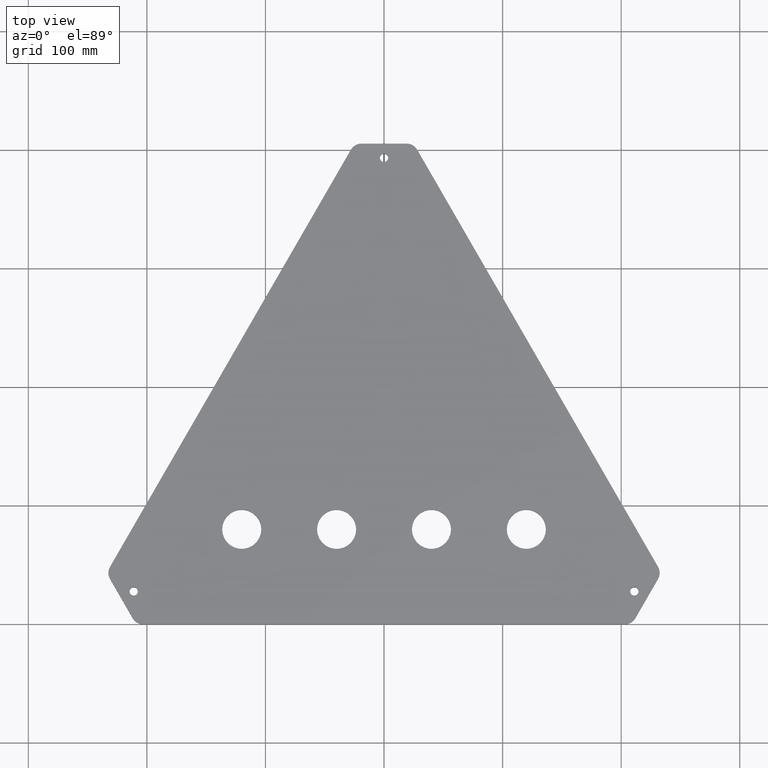
[diagram: clean part render]
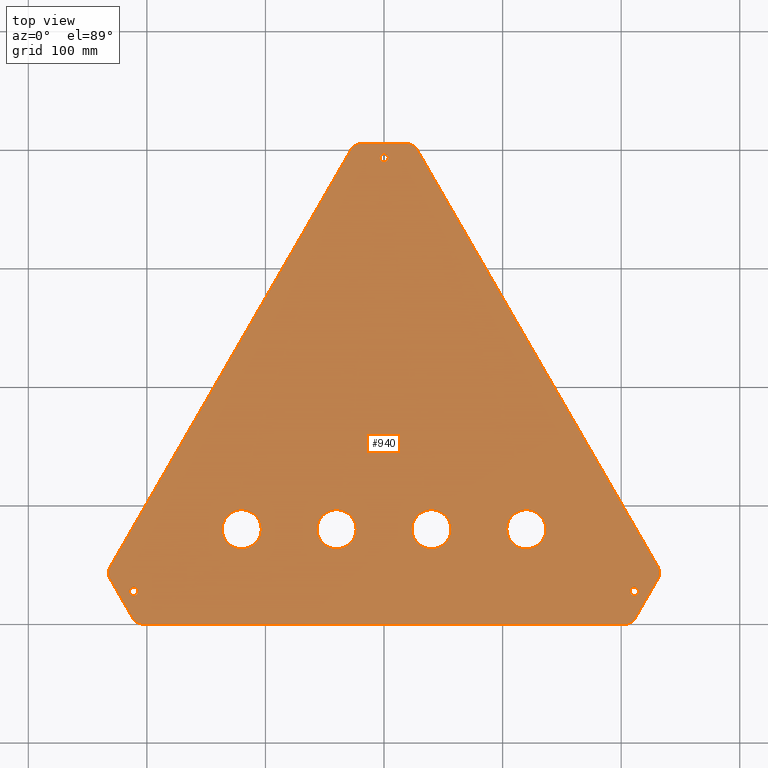
[diagram: same view with one face highlighted and labeled with its STEP entity id]
A machine part, top view. The second image highlights one B-rep face of the part: STEP entity #940.
In plain terms, the highlighted planar face has unit normal (0, -0, 1).
Its self-contained STEP definition (entity closure, byte-faithful):
#1 = DIRECTION ( 'NONE',  ( 0.0000000000000000000, 0.0000000000000000000, 1.000000000000000000 ) ) ;
#6 = CARTESIAN_POINT ( 'NONE',  ( -120.0000000000000000, 80.00000000000000000, 12.00000000000000000 ) ) ;
#7 = DIRECTION ( 'NONE',  ( 0.0000000000000000000, 0.0000000000000000000, 1.000000000000000000 ) ) ;
#8 = LINE ( 'NONE', #241, #11 ) ;
#11 = VECTOR ( 'NONE', #330, 1000.000000000000000 ) ;
#17 = CARTESIAN_POINT ( 'NONE',  ( 222.4529946162090500, 43.30127018922122800, 12.00000000000000000 ) ) ;
#22 = AXIS2_PLACEMENT_3D ( 'NONE', #854, #811, #997 ) ;
#25 = CIRCLE ( 'NONE', #489, 10.00000000000000900 ) ;
#26 = CIRCLE ( 'NONE', #990, 3.499999999999975100 ) ;
#27 = DIRECTION ( 'NONE',  ( 1.000000000000000000, 0.0000000000000000000, 0.0000000000000000000 ) ) ;
#29 = AXIS2_PLACEMENT_3D ( 'NONE', #859, #873, #865 ) ;
#30 = EDGE_CURVE ( 'NONE', #79, #465, #969, .T. ) ;
#34 = CIRCLE ( 'NONE', #333, 3.499999999999975100 ) ;
#48 = CARTESIAN_POINT ( 'NONE',  ( 231.1132486540532200, 38.30127018922088000, 12.00000000000000000 ) ) ;
#53 = DIRECTION ( 'NONE',  ( 0.5000000000000346400, 0.8660254037844186100, 0.0000000000000000000 ) ) ;
#55 = FACE_OUTER_BOUND ( 'NONE', #716, .T. ) ;
#57 = CARTESIAN_POINT ( 'NONE',  ( 27.88675134594812000, 400.2998889711154200, 12.00000000000000000 ) ) ;
#59 = FACE_BOUND ( 'NONE', #887, .T. ) ;
#60 = ORIENTED_EDGE ( 'NONE', *, *, #30, .T. ) ;
#63 = FACE_BOUND ( 'NONE', #816, .T. ) ;
#65 = FACE_BOUND ( 'NONE', #665, .T. ) ;
#67 = FACE_BOUND ( 'NONE', #300, .T. ) ;
#70 = FACE_BOUND ( 'NONE', #171, .T. ) ;
#72 = CARTESIAN_POINT ( 'NONE',  ( 208.9999999999999700, 8.957595751706218500E-014, 12.00000000000000000 ) ) ;
#74 = CARTESIAN_POINT ( 'NONE',  ( -231.1132486540531400, 38.30127018922085100, 12.00000000000000000 ) ) ;
#75 = FACE_BOUND ( 'NONE', #935, .T. ) ;
#76 = FACE_BOUND ( 'NONE', #991, .T. ) ;
#77 = EDGE_CURVE ( 'NONE', #867, #1025, #977, .T. ) ;
#79 = VERTEX_POINT ( 'NONE', #145 ) ;
#82 = CARTESIAN_POINT ( 'NONE',  ( 211.1076951545877900, 27.65063509461099000, 12.00000000000000000 ) ) ;
#90 = CARTESIAN_POINT ( 'NONE',  ( 214.6076951545877900, 27.65063509461099000, 12.00000000000000000 ) ) ;
#93 = ORIENTED_EDGE ( 'NONE', *, *, #644, .F. ) ;
#99 = CIRCLE ( 'NONE', #1020, 10.00000000000000900 ) ;
#105 = DIRECTION ( 'NONE',  ( 0.0000000000000000000, -0.0000000000000000000, 1.000000000000000000 ) ) ;
#110 = CARTESIAN_POINT ( 'NONE',  ( 23.49999999999999300, 80.00000000000001400, 12.00000000000000000 ) ) ;
#122 = EDGE_CURVE ( 'NONE', #632, #573, #947, .T. ) ;
#127 = CIRCLE ( 'NONE', #474, 9.999999999999998200 ) ;
#132 = CARTESIAN_POINT ( 'NONE',  ( 3.500000000000006200, 393.2998889711154200, 12.00000000000000000 ) ) ;
#137 = DIRECTION ( 'NONE',  ( 0.0000000000000000000, 0.0000000000000000000, 1.000000000000000000 ) ) ;
#139 = AXIS2_PLACEMENT_3D ( 'NONE', #714, #513, #509 ) ;
#141 = ORIENTED_EDGE ( 'NONE', *, *, #366, .F. ) ;
#145 = CARTESIAN_POINT ( 'NONE',  ( 231.1132486540534200, 48.30127018922127000, 12.00000000000000000 ) ) ;
#150 = DIRECTION ( 'NONE',  ( 1.000000000000000000, 0.0000000000000000000, 0.0000000000000000000 ) ) ;
#151 = CIRCLE ( 'NONE', #939, 16.50000000000000000 ) ;
#152 = EDGE_CURVE ( 'NONE', #681, #840, #904, .T. ) ;
#153 = CIRCLE ( 'NONE', #29, 16.50000000000001400 ) ;
#154 = CIRCLE ( 'NONE', #882, 10.00000000000000900 ) ;
#160 = DIRECTION ( 'NONE',  ( -0.5000000000000041100, 0.8660254037844362700, 0.0000000000000000000 ) ) ;
#161 = DIRECTION ( 'NONE',  ( 0.0000000000000000000, 0.0000000000000000000, 1.000000000000000000 ) ) ;
#163 = AXIS2_PLACEMENT_3D ( 'NONE', #431, #660, #655 ) ;
#169 = CARTESIAN_POINT ( 'NONE',  ( -40.00000000000000000, 80.00000000000000000, 12.00000000000000000 ) ) ;
#170 = VERTEX_POINT ( 'NONE', #208 ) ;
#171 = EDGE_LOOP ( 'NONE', ( #141, #730 ) ) ;
#174 = EDGE_CURVE ( 'NONE', #984, #420, #405, .T. ) ;
#176 = DIRECTION ( 'NONE',  ( 1.000000000000000000, 0.0000000000000000000, 0.0000000000000000000 ) ) ;
#178 = CIRCLE ( 'NONE', #22, 10.00000000000000900 ) ;
#182 = DIRECTION ( 'NONE',  ( 0.0000000000000000000, -0.0000000000000000000, 1.000000000000000000 ) ) ;
#184 = CIRCLE ( 'NONE', #163, 10.00000000000000900 ) ;
#186 = CARTESIAN_POINT ( 'NONE',  ( -203.2264973081040000, 10.00000000000003600, 12.00000000000000000 ) ) ;
#206 = CIRCLE ( 'NONE', #305, 16.50000000000000000 ) ;
#208 = CARTESIAN_POINT ( 'NONE',  ( -56.50000000000000000, 80.00000000000000000, 12.00000000000000000 ) ) ;
#210 = CIRCLE ( 'NONE', #224, 16.50000000000000700 ) ;
#212 = CARTESIAN_POINT ( 'NONE',  ( 211.8867513459481700, 4.999999999999755800, 12.00000000000000000 ) ) ;
#216 = CIRCLE ( 'NONE', #533, 16.50000000000000700 ) ;
#220 = CIRCLE ( 'NONE', #139, 3.500000000000004400 ) ;
#221 = CIRCLE ( 'NONE', #299, 16.50000000000001400 ) ;
#224 = AXIS2_PLACEMENT_3D ( 'NONE', #404, #734, #729 ) ;
#229 = CIRCLE ( 'NONE', #321, 16.49999999999998600 ) ;
#235 = CARTESIAN_POINT ( 'NONE',  ( 103.4999999999999900, 80.00000000000001400, 12.00000000000000000 ) ) ;
#241 = CARTESIAN_POINT ( 'NONE',  ( 24.99999999999995400, 405.2998889711154200, 12.00000000000000000 ) ) ;
#245 = EDGE_CURVE ( 'NONE', #710, #549, #348, .T. ) ;
#254 = EDGE_CURVE ( 'NONE', #894, #353, #339, .T. ) ;
#261 = EDGE_CURVE ( 'NONE', #462, #764, #334, .T. ) ;
#272 = VECTOR ( 'NONE', #561, 1000.000000000000100 ) ;
#275 = ORIENTED_EDGE ( 'NONE', *, *, #254, .F. ) ;
#283 = DIRECTION ( 'NONE',  ( 1.000000000000000000, 0.0000000000000000000, 0.0000000000000000000 ) ) ;
#285 = EDGE_CURVE ( 'NONE', #712, #544, #303, .T. ) ;
#289 = DIRECTION ( 'NONE',  ( 0.0000000000000000000, 0.0000000000000000000, 1.000000000000000000 ) ) ;
#293 = CARTESIAN_POINT ( 'NONE',  ( 40.00000000000000000, 80.00000000000001400, 12.00000000000000000 ) ) ;
#299 = AXIS2_PLACEMENT_3D ( 'NONE', #580, #565, #423 ) ;
#300 = EDGE_LOOP ( 'NONE', ( #925, #504 ) ) ;
#302 = DIRECTION ( 'NONE',  ( 1.000000000000000000, 0.0000000000000000000, 0.0000000000000000000 ) ) ;
#303 = LINE ( 'NONE', #590, #272 ) ;
#305 = AXIS2_PLACEMENT_3D ( 'NONE', #635, #629, #851 ) ;
#312 = CARTESIAN_POINT ( 'NONE',  ( -19.22649730810385500, 405.2998889711154200, 12.00000000000000000 ) ) ;
#319 = ORIENTED_EDGE ( 'NONE', *, *, #122, .F. ) ;
#321 = AXIS2_PLACEMENT_3D ( 'NONE', #6, #1, #302 ) ;
#327 = CARTESIAN_POINT ( 'NONE',  ( -23.50000000000000000, 80.00000000000000000, 12.00000000000000000 ) ) ;
#328 = VECTOR ( 'NONE', #874, 1000.000000000000000 ) ;
#330 = DIRECTION ( 'NONE',  ( -1.000000000000000000, 0.0000000000000000000, 0.0000000000000000000 ) ) ;
#333 = AXIS2_PLACEMENT_3D ( 'NONE', #373, #367, #364 ) ;
#334 = LINE ( 'NONE', #830, #328 ) ;
#337 = VECTOR ( 'NONE', #761, 1000.000000000000000 ) ;
#338 = CARTESIAN_POINT ( 'NONE',  ( 234.0000000000017100, 43.30127018922103600, 12.00000000000000000 ) ) ;
#339 = CIRCLE ( 'NONE', #581, 16.49999999999998600 ) ;
#340 = CARTESIAN_POINT ( 'NONE',  ( -103.5000000000000100, 80.00000000000000000, 12.00000000000000000 ) ) ;
#345 = DIRECTION ( 'NONE',  ( 1.000000000000000000, 0.0000000000000000000, 0.0000000000000000000 ) ) ;
#348 = LINE ( 'NONE', #889, #337 ) ;
#351 = DIRECTION ( 'NONE',  ( 0.0000000000000000000, 0.0000000000000000000, 1.000000000000000000 ) ) ;
#353 = VERTEX_POINT ( 'NONE', #340 ) ;
#364 = DIRECTION ( 'NONE',  ( 1.000000000000000000, 0.0000000000000000000, 0.0000000000000000000 ) ) ;
#366 = EDGE_CURVE ( 'NONE', #868, #430, #216, .T. ) ;
#367 = DIRECTION ( 'NONE',  ( 0.0000000000000000000, 0.0000000000000000000, 1.000000000000000000 ) ) ;
#373 = CARTESIAN_POINT ( 'NONE',  ( -211.1076951545877300, 27.65063509461091200, 12.00000000000000000 ) ) ;
#379 = CARTESIAN_POINT ( 'NONE',  ( -136.4999999999999700, 80.00000000000000000, 12.00000000000000000 ) ) ;
#383 = DIRECTION ( 'NONE',  ( 1.000000000000000000, 0.0000000000000000000, 0.0000000000000000000 ) ) ;
#385 = DIRECTION ( 'NONE',  ( 0.0000000000000000000, -0.0000000000000000000, 1.000000000000000000 ) ) ;
#389 = CARTESIAN_POINT ( 'NONE',  ( -203.2264973081040000, 3.904751658926383700E-014, 12.00000000000000000 ) ) ;
#397 = CARTESIAN_POINT ( 'NONE',  ( -27.88675134594825900, 400.2998889711154200, 12.00000000000000000 ) ) ;
#404 = CARTESIAN_POINT ( 'NONE',  ( 40.00000000000000000, 80.00000000000001400, 12.00000000000000000 ) ) ;
#405 = CIRCLE ( 'NONE', #695, 3.499999999999975100 ) ;
#418 = AXIS2_PLACEMENT_3D ( 'NONE', #453, #385, #383 ) ;
#420 = VERTEX_POINT ( 'NONE', #90 ) ;
#423 = DIRECTION ( 'NONE',  ( 1.000000000000000000, 0.0000000000000000000, 0.0000000000000000000 ) ) ;
#427 = ORIENTED_EDGE ( 'NONE', *, *, #724, .T. ) ;
#430 = VERTEX_POINT ( 'NONE', #110 ) ;
#431 = CARTESIAN_POINT ( 'NONE',  ( 203.2264973081040000, 10.00000000000008500, 12.00000000000000000 ) ) ;
#433 = CARTESIAN_POINT ( 'NONE',  ( 0.0000000000000000000, 0.0000000000000000000, 12.00000000000000000 ) ) ;
#435 = CARTESIAN_POINT ( 'NONE',  ( 1.575633682849302900E-015, 393.2998889711154200, 12.00000000000000000 ) ) ;
#453 = CARTESIAN_POINT ( 'NONE',  ( -19.22649730810385500, 395.2998889711153700, 12.00000000000000000 ) ) ;
#462 = VERTEX_POINT ( 'NONE', #74 ) ;
#465 = VERTEX_POINT ( 'NONE', #57 ) ;
#474 = AXIS2_PLACEMENT_3D ( 'NONE', #762, #696, #691 ) ;
#489 = AXIS2_PLACEMENT_3D ( 'NONE', #186, #182, #176 ) ;
#491 = CARTESIAN_POINT ( 'NONE',  ( 211.1076951545877900, 27.65063509461099000, 12.00000000000000000 ) ) ;
#494 = ORIENTED_EDGE ( 'NONE', *, *, #261, .T. ) ;
#496 = ORIENTED_EDGE ( 'NONE', *, *, #775, .T. ) ;
#504 = ORIENTED_EDGE ( 'NONE', *, *, #809, .F. ) ;
#509 = DIRECTION ( 'NONE',  ( 1.000000000000000000, 0.0000000000000000000, 0.0000000000000000000 ) ) ;
#513 = DIRECTION ( 'NONE',  ( 0.0000000000000000000, 0.0000000000000000000, 1.000000000000000000 ) ) ;
#530 = DIRECTION ( 'NONE',  ( 1.000000000000000000, 0.0000000000000000000, 0.0000000000000000000 ) ) ;
#533 = AXIS2_PLACEMENT_3D ( 'NONE', #293, #289, #283 ) ;
#544 = VERTEX_POINT ( 'NONE', #826 ) ;
#549 = VERTEX_POINT ( 'NONE', #905 ) ;
#556 = DIRECTION ( 'NONE',  ( 1.000000000000000000, 0.0000000000000000000, 0.0000000000000000000 ) ) ;
#557 = VERTEX_POINT ( 'NONE', #829 ) ;
#561 = DIRECTION ( 'NONE',  ( -0.5000000000000036600, -0.8660254037844366000, -0.0000000000000000000 ) ) ;
#565 = DIRECTION ( 'NONE',  ( 0.0000000000000000000, 0.0000000000000000000, 1.000000000000000000 ) ) ;
#573 = VERTEX_POINT ( 'NONE', #593 ) ;
#580 = CARTESIAN_POINT ( 'NONE',  ( 120.0000000000000000, 80.00000000000001400, 12.00000000000000000 ) ) ;
#581 = AXIS2_PLACEMENT_3D ( 'NONE', #723, #719, #678 ) ;
#590 = CARTESIAN_POINT ( 'NONE',  ( -234.0000000000015900, 43.30127018922097900, 12.00000000000000000 ) ) ;
#593 = CARTESIAN_POINT ( 'NONE',  ( -214.6076951545877300, 27.65063509461091200, 12.00000000000000000 ) ) ;
#613 = EDGE_CURVE ( 'NONE', #353, #894, #229, .T. ) ;
#625 = ORIENTED_EDGE ( 'NONE', *, *, #285, .T. ) ;
#629 = DIRECTION ( 'NONE',  ( 0.0000000000000000000, 0.0000000000000000000, 1.000000000000000000 ) ) ;
#632 = VERTEX_POINT ( 'NONE', #1030 ) ;
#635 = CARTESIAN_POINT ( 'NONE',  ( -40.00000000000000000, 80.00000000000000000, 12.00000000000000000 ) ) ;
#637 = CIRCLE ( 'NONE', #418, 9.999999999999996400 ) ;
#643 = ORIENTED_EDGE ( 'NONE', *, *, #152, .F. ) ;
#644 = EDGE_CURVE ( 'NONE', #750, #815, #221, .T. ) ;
#651 = CARTESIAN_POINT ( 'NONE',  ( -232.4529946162089400, 43.30127018922117100, 12.00000000000000000 ) ) ;
#655 = DIRECTION ( 'NONE',  ( 1.000000000000000000, 0.0000000000000000000, 0.0000000000000000000 ) ) ;
#656 = EDGE_CURVE ( 'NONE', #430, #868, #210, .T. ) ;
#660 = DIRECTION ( 'NONE',  ( 0.0000000000000000000, -0.0000000000000000000, 1.000000000000000000 ) ) ;
#665 = EDGE_LOOP ( 'NONE', ( #319, #786 ) ) ;
#673 = EDGE_CURVE ( 'NONE', #803, #170, #206, .T. ) ;
#677 = ORIENTED_EDGE ( 'NONE', *, *, #785, .F. ) ;
#678 = DIRECTION ( 'NONE',  ( 1.000000000000000000, 0.0000000000000000000, 0.0000000000000000000 ) ) ;
#681 = VERTEX_POINT ( 'NONE', #792 ) ;
#686 = CARTESIAN_POINT ( 'NONE',  ( -222.4529946162089400, 43.30127018922117100, 12.00000000000000000 ) ) ;
#691 = DIRECTION ( 'NONE',  ( 1.000000000000000000, 0.0000000000000000000, 0.0000000000000000000 ) ) ;
#695 = AXIS2_PLACEMENT_3D ( 'NONE', #82, #7, #1027 ) ;
#696 = DIRECTION ( 'NONE',  ( 0.0000000000000000000, -0.0000000000000000000, 1.000000000000000000 ) ) ;
#697 = ORIENTED_EDGE ( 'NONE', *, *, #1005, .F. ) ;
#710 = VERTEX_POINT ( 'NONE', #389 ) ;
#712 = VERTEX_POINT ( 'NONE', #397 ) ;
#714 = CARTESIAN_POINT ( 'NONE',  ( 1.575633682849302900E-015, 393.2998889711154200, 12.00000000000000000 ) ) ;
#715 = EDGE_CURVE ( 'NONE', #840, #681, #220, .T. ) ;
#716 = EDGE_LOOP ( 'NONE', ( #494, #735, #875, #427, #812, #1001, #60, #771, #756, #986, #625, #496, #843 ) ) ;
#719 = DIRECTION ( 'NONE',  ( 0.0000000000000000000, 0.0000000000000000000, 1.000000000000000000 ) ) ;
#723 = CARTESIAN_POINT ( 'NONE',  ( -120.0000000000000000, 80.00000000000000000, 12.00000000000000000 ) ) ;
#724 = EDGE_CURVE ( 'NONE', #549, #867, #184, .T. ) ;
#725 = VERTEX_POINT ( 'NONE', #651 ) ;
#729 = DIRECTION ( 'NONE',  ( 1.000000000000000000, 0.0000000000000000000, 0.0000000000000000000 ) ) ;
#730 = ORIENTED_EDGE ( 'NONE', *, *, #656, .F. ) ;
#732 = AXIS2_PLACEMENT_3D ( 'NONE', #435, #351, #345 ) ;
#734 = DIRECTION ( 'NONE',  ( 0.0000000000000000000, 0.0000000000000000000, 1.000000000000000000 ) ) ;
#735 = ORIENTED_EDGE ( 'NONE', *, *, #1000, .T. ) ;
#739 = CARTESIAN_POINT ( 'NONE',  ( 207.6076951545878200, 27.65063509461099000, 12.00000000000000000 ) ) ;
#747 = DIRECTION ( 'NONE',  ( 1.000000000000000000, 0.0000000000000000000, 0.0000000000000000000 ) ) ;
#750 = VERTEX_POINT ( 'NONE', #791 ) ;
#754 = ORIENTED_EDGE ( 'NONE', *, *, #613, .F. ) ;
#756 = ORIENTED_EDGE ( 'NONE', *, *, #1018, .T. ) ;
#758 = DIRECTION ( 'NONE',  ( 0.0000000000000000000, 0.0000000000000000000, 1.000000000000000000 ) ) ;
#759 = DIRECTION ( 'NONE',  ( 0.0000000000000000000, -0.0000000000000000000, 1.000000000000000000 ) ) ;
#761 = DIRECTION ( 'NONE',  ( 1.000000000000000000, 1.225744615102523800E-016, 0.0000000000000000000 ) ) ;
#762 = CARTESIAN_POINT ( 'NONE',  ( 19.22649730810367400, 395.2998889711154200, 12.00000000000000000 ) ) ;
#763 = ORIENTED_EDGE ( 'NONE', *, *, #715, .F. ) ;
#764 = VERTEX_POINT ( 'NONE', #1015 ) ;
#770 = CARTESIAN_POINT ( 'NONE',  ( 56.50000000000000700, 80.00000000000001400, 12.00000000000000000 ) ) ;
#771 = ORIENTED_EDGE ( 'NONE', *, *, #860, .T. ) ;
#774 = AXIS2_PLACEMENT_3D ( 'NONE', #802, #758, #747 ) ;
#775 = EDGE_CURVE ( 'NONE', #544, #725, #178, .T. ) ;
#785 = EDGE_CURVE ( 'NONE', #815, #750, #153, .T. ) ;
#786 = ORIENTED_EDGE ( 'NONE', *, *, #976, .F. ) ;
#791 = CARTESIAN_POINT ( 'NONE',  ( 136.5000000000000000, 80.00000000000001400, 12.00000000000000000 ) ) ;
#792 = CARTESIAN_POINT ( 'NONE',  ( -3.500000000000002700, 393.2998889711154200, 12.00000000000000000 ) ) ;
#802 = CARTESIAN_POINT ( 'NONE',  ( -211.1076951545877300, 27.65063509461091200, 12.00000000000000000 ) ) ;
#803 = VERTEX_POINT ( 'NONE', #327 ) ;
#809 = EDGE_CURVE ( 'NONE', #170, #803, #151, .T. ) ;
#811 = DIRECTION ( 'NONE',  ( 0.0000000000000000000, -0.0000000000000000000, 1.000000000000000000 ) ) ;
#812 = ORIENTED_EDGE ( 'NONE', *, *, #77, .T. ) ;
#815 = VERTEX_POINT ( 'NONE', #235 ) ;
#816 = EDGE_LOOP ( 'NONE', ( #763, #643 ) ) ;
#826 = CARTESIAN_POINT ( 'NONE',  ( -231.1132486540533100, 48.30127018922121400, 12.00000000000000000 ) ) ;
#829 = CARTESIAN_POINT ( 'NONE',  ( 19.22649730810367400, 405.2998889711154200, 12.00000000000000000 ) ) ;
#830 = CARTESIAN_POINT ( 'NONE',  ( -209.0000000000000300, 3.833983260577668600E-014, 12.00000000000000000 ) ) ;
#839 = EDGE_CURVE ( 'NONE', #725, #462, #154, .T. ) ;
#840 = VERTEX_POINT ( 'NONE', #132 ) ;
#843 = ORIENTED_EDGE ( 'NONE', *, *, #839, .T. ) ;
#851 = DIRECTION ( 'NONE',  ( 1.000000000000000000, 0.0000000000000000000, 0.0000000000000000000 ) ) ;
#854 = CARTESIAN_POINT ( 'NONE',  ( -222.4529946162089400, 43.30127018922117100, 12.00000000000000000 ) ) ;
#859 = CARTESIAN_POINT ( 'NONE',  ( 120.0000000000000000, 80.00000000000001400, 12.00000000000000000 ) ) ;
#860 = EDGE_CURVE ( 'NONE', #465, #557, #127, .T. ) ;
#865 = DIRECTION ( 'NONE',  ( 1.000000000000000000, 0.0000000000000000000, 0.0000000000000000000 ) ) ;
#867 = VERTEX_POINT ( 'NONE', #212 ) ;
#868 = VERTEX_POINT ( 'NONE', #770 ) ;
#873 = DIRECTION ( 'NONE',  ( 0.0000000000000000000, 0.0000000000000000000, 1.000000000000000000 ) ) ;
#874 = DIRECTION ( 'NONE',  ( 0.5000000000000322000, -0.8660254037844200600, -0.0000000000000000000 ) ) ;
#875 = ORIENTED_EDGE ( 'NONE', *, *, #245, .T. ) ;
#880 = EDGE_CURVE ( 'NONE', #895, #712, #637, .T. ) ;
#882 = AXIS2_PLACEMENT_3D ( 'NONE', #686, #759, #530 ) ;
#887 = EDGE_LOOP ( 'NONE', ( #697, #943 ) ) ;
#889 = CARTESIAN_POINT ( 'NONE',  ( -209.0000000000000300, 3.833983260577668600E-014, 12.00000000000000000 ) ) ;
#894 = VERTEX_POINT ( 'NONE', #379 ) ;
#895 = VERTEX_POINT ( 'NONE', #312 ) ;
#904 = CIRCLE ( 'NONE', #732, 3.500000000000004400 ) ;
#905 = CARTESIAN_POINT ( 'NONE',  ( 203.2264973081040000, 8.886827353357504600E-014, 12.00000000000000000 ) ) ;
#907 = AXIS2_PLACEMENT_3D ( 'NONE', #433, #1021, #952 ) ;
#910 = EDGE_CURVE ( 'NONE', #1025, #79, #99, .T. ) ;
#925 = ORIENTED_EDGE ( 'NONE', *, *, #673, .F. ) ;
#927 = VECTOR ( 'NONE', #160, 1000.000000000000100 ) ;
#935 = EDGE_LOOP ( 'NONE', ( #754, #275 ) ) ;
#939 = AXIS2_PLACEMENT_3D ( 'NONE', #169, #161, #150 ) ;
#940 = ADVANCED_FACE ( 'NONE', ( #76, #75, #70, #67, #65, #63, #59, #55 ), #987, .T. ) ;
#943 = ORIENTED_EDGE ( 'NONE', *, *, #174, .F. ) ;
#947 = CIRCLE ( 'NONE', #774, 3.499999999999975100 ) ;
#952 = DIRECTION ( 'NONE',  ( 1.000000000000000000, 0.0000000000000000000, -0.0000000000000000000 ) ) ;
#969 = LINE ( 'NONE', #338, #927 ) ;
#971 = VECTOR ( 'NONE', #53, 1000.000000000000200 ) ;
#976 = EDGE_CURVE ( 'NONE', #573, #632, #34, .T. ) ;
#977 = LINE ( 'NONE', #72, #971 ) ;
#984 = VERTEX_POINT ( 'NONE', #739 ) ;
#986 = ORIENTED_EDGE ( 'NONE', *, *, #880, .T. ) ;
#987 = PLANE ( 'NONE',  #907 ) ;
#990 = AXIS2_PLACEMENT_3D ( 'NONE', #491, #137, #556 ) ;
#991 = EDGE_LOOP ( 'NONE', ( #93, #677 ) ) ;
#997 = DIRECTION ( 'NONE',  ( 1.000000000000000000, 0.0000000000000000000, 0.0000000000000000000 ) ) ;
#1000 = EDGE_CURVE ( 'NONE', #764, #710, #25, .T. ) ;
#1001 = ORIENTED_EDGE ( 'NONE', *, *, #910, .T. ) ;
#1005 = EDGE_CURVE ( 'NONE', #420, #984, #26, .T. ) ;
#1015 = CARTESIAN_POINT ( 'NONE',  ( -211.8867513459482000, 4.999999999999701600, 12.00000000000000000 ) ) ;
#1018 = EDGE_CURVE ( 'NONE', #557, #895, #8, .T. ) ;
#1020 = AXIS2_PLACEMENT_3D ( 'NONE', #17, #105, #27 ) ;
#1021 = DIRECTION ( 'NONE',  ( 0.0000000000000000000, -0.0000000000000000000, 1.000000000000000000 ) ) ;
#1025 = VERTEX_POINT ( 'NONE', #48 ) ;
#1027 = DIRECTION ( 'NONE',  ( 1.000000000000000000, 0.0000000000000000000, 0.0000000000000000000 ) ) ;
#1030 = CARTESIAN_POINT ( 'NONE',  ( -207.6076951545877600, 27.65063509461091200, 12.00000000000000000 ) ) ;